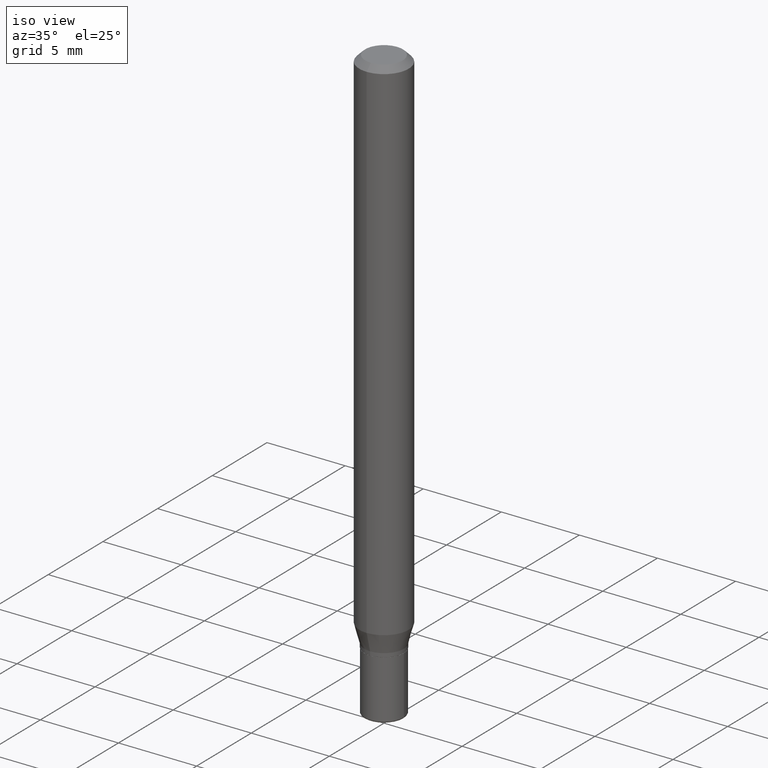
[diagram: clean part render]
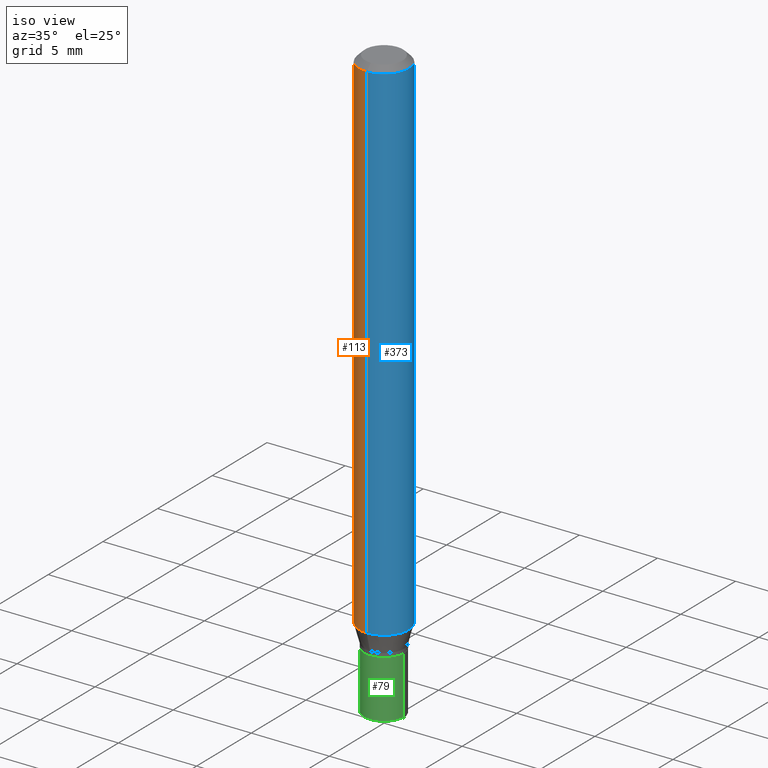
[diagram: same view with three faces highlighted in distinct colors, each labeled with its STEP entity id]
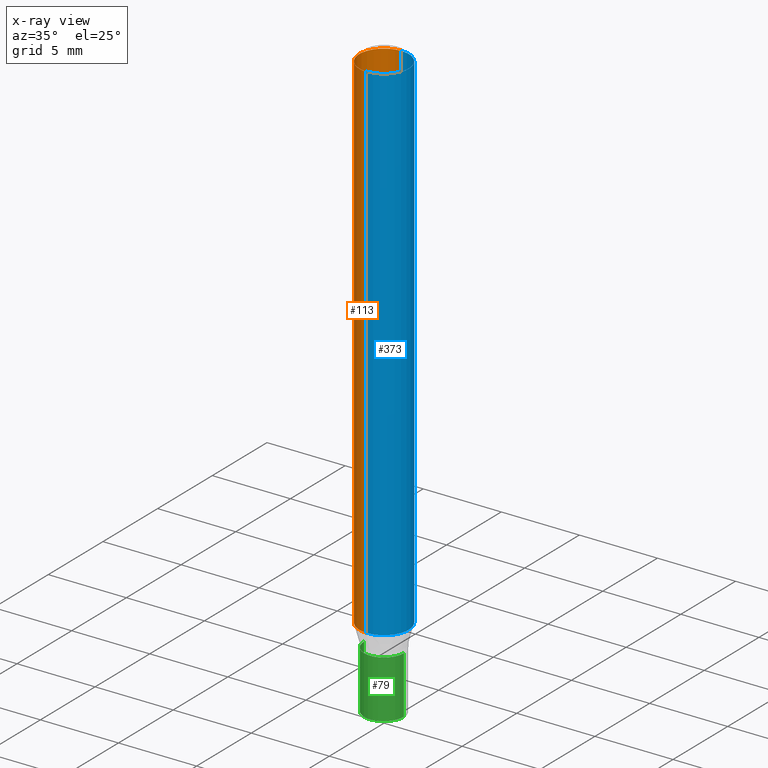
[diagram: x-ray of the same camera — body ghosted, the three highlighted faces saturated]
A machine part, iso view with three faces highlighted in distinct colors.
The next image is the same camera in x-ray (body ghosted, the three faces saturated) — at least one of them is partly hidden behind the body in this view.
Their STEP definitions:

[orange] entity #113 — the highlighted cylindrical surface (edge-blend (fillet) strip) has radius 1.5875 mm, axis along (-0, 0, 1).
#20 = CARTESIAN_POINT ( 'NONE',  ( 4.440892098500943678E-16, 0.06249999999999551747, -1.293349364905389098 ) ) ;
#38 = DIRECTION ( 'NONE',  ( -2.445432708408292326E-29, 3.491533032914144486E-15, 1.000000000000000000 ) ) ;
#56 = CARTESIAN_POINT ( 'NONE',  ( 3.668149062612366305E-31, -5.237299549371112845E-17, -0.01499999999999970281 ) ) ;
#110 = CARTESIAN_POINT ( 'NONE',  ( 4.440892098500943678E-16, 0.06249999999999995143, -0.01499999999999992138 ) ) ;
#113 = ADVANCED_FACE ( 'NONE', ( #230 ), #314, .T. ) ;
#116 = VERTEX_POINT ( 'NONE', #393 ) ;
#138 = LINE ( 'NONE', #380, #367 ) ;
#143 = ORIENTED_EDGE ( 'NONE', *, *, #510, .F. ) ;
#150 = DIRECTION ( 'NONE',  ( -2.445432708408292606E-29, 3.491533032914144486E-15, 1.000000000000000000 ) ) ;
#154 = EDGE_CURVE ( 'NONE', #311, #363, #191, .T. ) ;
#171 = DIRECTION ( 'NONE',  ( -2.445432708408292326E-29, 3.491533032914144486E-15, 1.000000000000000000 ) ) ;
#188 = DIRECTION ( 'NONE',  ( -6.982962677686265922E-15, -1.000000000000000000, 3.491533032914144091E-15 ) ) ;
#191 = LINE ( 'NONE', #513, #509 ) ;
#216 = DIRECTION ( 'NONE',  ( -6.982962677686265922E-15, -1.000000000000000000, 3.483106191921935554E-15 ) ) ;
#217 = CARTESIAN_POINT ( 'NONE',  ( 3.162798840338729731E-29, -4.515772030665694516E-15, -1.293349364905388876 ) ) ;
#230 = FACE_OUTER_BOUND ( 'NONE', #504, .T. ) ;
#303 = AXIS2_PLACEMENT_3D ( 'NONE', #217, #171, #413 ) ;
#311 = VERTEX_POINT ( 'NONE', #20 ) ;
#314 = CYLINDRICAL_SURFACE ( 'NONE', #374, 0.06250000000000000000 ) ;
#320 = ORIENTED_EDGE ( 'NONE', *, *, #348, .T. ) ;
#340 = AXIS2_PLACEMENT_3D ( 'NONE', #56, #372, #216 ) ;
#348 = EDGE_CURVE ( 'NONE', #311, #116, #478, .T. ) ;
#363 = VERTEX_POINT ( 'NONE', #110 ) ;
#367 = VECTOR ( 'NONE', #408, 39.37007874015748143 ) ;
#372 = DIRECTION ( 'NONE',  ( -2.445432708408292326E-29, 3.491533032914144486E-15, 1.000000000000000000 ) ) ;
#374 = AXIS2_PLACEMENT_3D ( 'NONE', #401, #38, #188 ) ;
#380 = CARTESIAN_POINT ( 'NONE',  ( -4.364351673553916201E-16, -0.06250000000000000000, 2.182208145571340057E-16 ) ) ;
#383 = CARTESIAN_POINT ( 'NONE',  ( -4.364351673553912750E-16, -0.06250000000000005551, -0.01499999999999948597 ) ) ;
#393 = CARTESIAN_POINT ( 'NONE',  ( -4.364351673553597698E-16, -0.06250000000000449640, -1.293349364905388654 ) ) ;
#401 = CARTESIAN_POINT ( 'NONE',  ( 0.000000000000000000, 0.000000000000000000, 0.000000000000000000 ) ) ;
#406 = CIRCLE ( 'NONE', #340, 0.06250000000000000000 ) ;
#408 = DIRECTION ( 'NONE',  ( -2.445432708408292606E-29, 3.491533032914144486E-15, 1.000000000000000000 ) ) ;
#413 = DIRECTION ( 'NONE',  ( -6.982962677686265922E-15, -1.000000000000000000, 4.370956789862821150E-15 ) ) ;
#448 = EDGE_CURVE ( 'NONE', #116, #512, #138, .T. ) ;
#475 = ORIENTED_EDGE ( 'NONE', *, *, #154, .F. ) ;
#478 = CIRCLE ( 'NONE', #303, 0.06250000000000000000 ) ;
#504 = EDGE_LOOP ( 'NONE', ( #475, #320, #517, #143 ) ) ;
#509 = VECTOR ( 'NONE', #150, 39.37007874015748143 ) ;
#510 = EDGE_CURVE ( 'NONE', #363, #512, #406, .T. ) ;
#512 = VERTEX_POINT ( 'NONE', #383 ) ;
#513 = CARTESIAN_POINT ( 'NONE',  ( 4.440892098500625669E-16, 0.06250000000000000000, -2.182208145571340057E-16 ) ) ;
#517 = ORIENTED_EDGE ( 'NONE', *, *, #448, .T. ) ;

[blue] entity #373 — the highlighted cylindrical surface (edge-blend (fillet) strip) has radius 1.5875 mm, axis along (-0, 0, 1).
#5 = DIRECTION ( 'NONE',  ( -6.982962677686265922E-15, -1.000000000000000000, 4.370956789862821150E-15 ) ) ;
#20 = CARTESIAN_POINT ( 'NONE',  ( 4.440892098500943678E-16, 0.06249999999999551747, -1.293349364905389098 ) ) ;
#24 = EDGE_LOOP ( 'NONE', ( #223, #30, #222, #33 ) ) ;
#30 = ORIENTED_EDGE ( 'NONE', *, *, #154, .T. ) ;
#33 = ORIENTED_EDGE ( 'NONE', *, *, #448, .F. ) ;
#35 = AXIS2_PLACEMENT_3D ( 'NONE', #297, #290, #166 ) ;
#69 = CARTESIAN_POINT ( 'NONE',  ( 0.000000000000000000, 0.000000000000000000, 0.000000000000000000 ) ) ;
#110 = CARTESIAN_POINT ( 'NONE',  ( 4.440892098500943678E-16, 0.06249999999999995143, -0.01499999999999992138 ) ) ;
#116 = VERTEX_POINT ( 'NONE', #393 ) ;
#138 = LINE ( 'NONE', #380, #367 ) ;
#150 = DIRECTION ( 'NONE',  ( -2.445432708408292606E-29, 3.491533032914144486E-15, 1.000000000000000000 ) ) ;
#154 = EDGE_CURVE ( 'NONE', #311, #363, #191, .T. ) ;
#166 = DIRECTION ( 'NONE',  ( -6.982962677686265922E-15, -1.000000000000000000, 3.483106191921935554E-15 ) ) ;
#189 = DIRECTION ( 'NONE',  ( -6.982962677686265922E-15, -1.000000000000000000, 3.491533032914144091E-15 ) ) ;
#191 = LINE ( 'NONE', #513, #509 ) ;
#222 = ORIENTED_EDGE ( 'NONE', *, *, #423, .F. ) ;
#223 = ORIENTED_EDGE ( 'NONE', *, *, #388, .T. ) ;
#290 = DIRECTION ( 'NONE',  ( -2.445432708408292326E-29, 3.491533032914144486E-15, 1.000000000000000000 ) ) ;
#297 = CARTESIAN_POINT ( 'NONE',  ( 3.668149062612366305E-31, -5.237299549371112845E-17, -0.01499999999999970281 ) ) ;
#308 = CARTESIAN_POINT ( 'NONE',  ( 3.162798840338729731E-29, -4.515772030665694516E-15, -1.293349364905388876 ) ) ;
#311 = VERTEX_POINT ( 'NONE', #20 ) ;
#312 = CIRCLE ( 'NONE', #35, 0.06250000000000000000 ) ;
#357 = CIRCLE ( 'NONE', #467, 0.06250000000000000000 ) ;
#363 = VERTEX_POINT ( 'NONE', #110 ) ;
#367 = VECTOR ( 'NONE', #408, 39.37007874015748143 ) ;
#373 = ADVANCED_FACE ( 'NONE', ( #429 ), #389, .T. ) ;
#380 = CARTESIAN_POINT ( 'NONE',  ( -4.364351673553916201E-16, -0.06250000000000000000, 2.182208145571340057E-16 ) ) ;
#383 = CARTESIAN_POINT ( 'NONE',  ( -4.364351673553912750E-16, -0.06250000000000005551, -0.01499999999999948597 ) ) ;
#388 = EDGE_CURVE ( 'NONE', #116, #311, #357, .T. ) ;
#389 = CYLINDRICAL_SURFACE ( 'NONE', #472, 0.06250000000000000000 ) ;
#393 = CARTESIAN_POINT ( 'NONE',  ( -4.364351673553597698E-16, -0.06250000000000449640, -1.293349364905388654 ) ) ;
#394 = DIRECTION ( 'NONE',  ( -2.445432708408292326E-29, 3.491533032914144486E-15, 1.000000000000000000 ) ) ;
#408 = DIRECTION ( 'NONE',  ( -2.445432708408292606E-29, 3.491533032914144486E-15, 1.000000000000000000 ) ) ;
#423 = EDGE_CURVE ( 'NONE', #512, #363, #312, .T. ) ;
#429 = FACE_OUTER_BOUND ( 'NONE', #24, .T. ) ;
#448 = EDGE_CURVE ( 'NONE', #116, #512, #138, .T. ) ;
#467 = AXIS2_PLACEMENT_3D ( 'NONE', #308, #394, #5 ) ;
#471 = DIRECTION ( 'NONE',  ( -2.445432708408292326E-29, 3.491533032914144486E-15, 1.000000000000000000 ) ) ;
#472 = AXIS2_PLACEMENT_3D ( 'NONE', #69, #471, #189 ) ;
#509 = VECTOR ( 'NONE', #150, 39.37007874015748143 ) ;
#512 = VERTEX_POINT ( 'NONE', #383 ) ;
#513 = CARTESIAN_POINT ( 'NONE',  ( 4.440892098500625669E-16, 0.06250000000000000000, -2.182208145571340057E-16 ) ) ;

[green] entity #79 — the highlighted cylindrical surface (edge-blend (fillet) strip) has radius 1.27 mm, axis along (-0, 0, 1).
#16 = DIRECTION ( 'NONE',  ( -2.445468806185136597E-29, 3.491481338843145583E-15, 1.000000000000000000 ) ) ;
#50 = CARTESIAN_POINT ( 'NONE',  ( -0.04999999999999996114, 3.552713678800498168E-16, -2.459467545127451209E-30 ) ) ;
#53 = DIRECTION ( 'NONE',  ( -2.445468806185136877E-29, 3.491481338843145188E-15, 1.000000000000000000 ) ) ;
#57 = DIRECTION ( 'NONE',  ( -2.445468806185136597E-29, 3.491481338843145583E-15, 1.000000000000000000 ) ) ;
#59 = DIRECTION ( 'NONE',  ( -2.445468806185136877E-29, 3.491481338843145188E-15, 1.000000000000000000 ) ) ;
#75 = FACE_OUTER_BOUND ( 'NONE', #342, .T. ) ;
#79 = ADVANCED_FACE ( 'NONE', ( #75 ), #435, .T. ) ;
#87 = CIRCLE ( 'NONE', #109, 0.05000000000000000278 ) ;
#109 = AXIS2_PLACEMENT_3D ( 'NONE', #422, #57, #465 ) ;
#175 = CARTESIAN_POINT ( 'NONE',  ( 0.04999999999999991257, -5.568912735454817265E-15, -1.495000000000000329 ) ) ;
#176 = DIRECTION ( 'NONE',  ( 1.000000000000000000, -6.982962677686266711E-15, 0.000000000000000000 ) ) ;
#187 = VERTEX_POINT ( 'NONE', #309 ) ;
#195 = DIRECTION ( 'NONE',  ( -2.445468806185136597E-29, 3.491481338843145583E-15, 1.000000000000000000 ) ) ;
#204 = CARTESIAN_POINT ( 'NONE',  ( 3.655975865246779683E-29, -5.219764601570503930E-15, -1.495000000000000329 ) ) ;
#213 = LINE ( 'NONE', #376, #385 ) ;
#238 = CARTESIAN_POINT ( 'NONE',  ( 0.000000000000000000, 0.000000000000000000, 0.000000000000000000 ) ) ;
#254 = EDGE_CURVE ( 'NONE', #481, #514, #463, .T. ) ;
#279 = VERTEX_POINT ( 'NONE', #175 ) ;
#309 = CARTESIAN_POINT ( 'NONE',  ( 0.05000000000000000278, -5.062647941322559931E-15, -1.350000000000000089 ) ) ;
#323 = ORIENTED_EDGE ( 'NONE', *, *, #431, .T. ) ;
#339 = ORIENTED_EDGE ( 'NONE', *, *, #254, .F. ) ;
#342 = EDGE_LOOP ( 'NONE', ( #339, #476, #323, #395 ) ) ;
#344 = EDGE_CURVE ( 'NONE', #514, #187, #87, .T. ) ;
#375 = VECTOR ( 'NONE', #59, 39.37007874015748143 ) ;
#376 = CARTESIAN_POINT ( 'NONE',  ( 0.04999999999999996114, -3.491481338843130397E-16, 2.438088387897966145E-30 ) ) ;
#385 = VECTOR ( 'NONE', #53, 39.37007874015748143 ) ;
#390 = AXIS2_PLACEMENT_3D ( 'NONE', #238, #195, #486 ) ;
#395 = ORIENTED_EDGE ( 'NONE', *, *, #344, .F. ) ;
#422 = CARTESIAN_POINT ( 'NONE',  ( 3.301382888349935078E-29, -4.713499807438246596E-15, -1.350000000000000089 ) ) ;
#431 = EDGE_CURVE ( 'NONE', #279, #187, #213, .T. ) ;
#433 = AXIS2_PLACEMENT_3D ( 'NONE', #204, #16, #176 ) ;
#435 = CYLINDRICAL_SURFACE ( 'NONE', #390, 0.04999999999999996114 ) ;
#454 = CIRCLE ( 'NONE', #433, 0.04999999999999991257 ) ;
#457 = CARTESIAN_POINT ( 'NONE',  ( -0.05000000000000000278, -4.611360836624325249E-15, -1.350000000000000089 ) ) ;
#461 = EDGE_CURVE ( 'NONE', #481, #279, #454, .T. ) ;
#463 = LINE ( 'NONE', #50, #375 ) ;
#465 = DIRECTION ( 'NONE',  ( 1.000000000000000000, -6.982962677686274599E-15, 0.000000000000000000 ) ) ;
#476 = ORIENTED_EDGE ( 'NONE', *, *, #461, .T. ) ;
#481 = VERTEX_POINT ( 'NONE', #497 ) ;
#486 = DIRECTION ( 'NONE',  ( 1.000000000000000000, -6.982962677686265922E-15, 4.876176775795936353E-29 ) ) ;
#497 = CARTESIAN_POINT ( 'NONE',  ( -0.04999999999999991257, -4.611360836624325249E-15, -1.495000000000000329 ) ) ;
#514 = VERTEX_POINT ( 'NONE', #457 ) ;